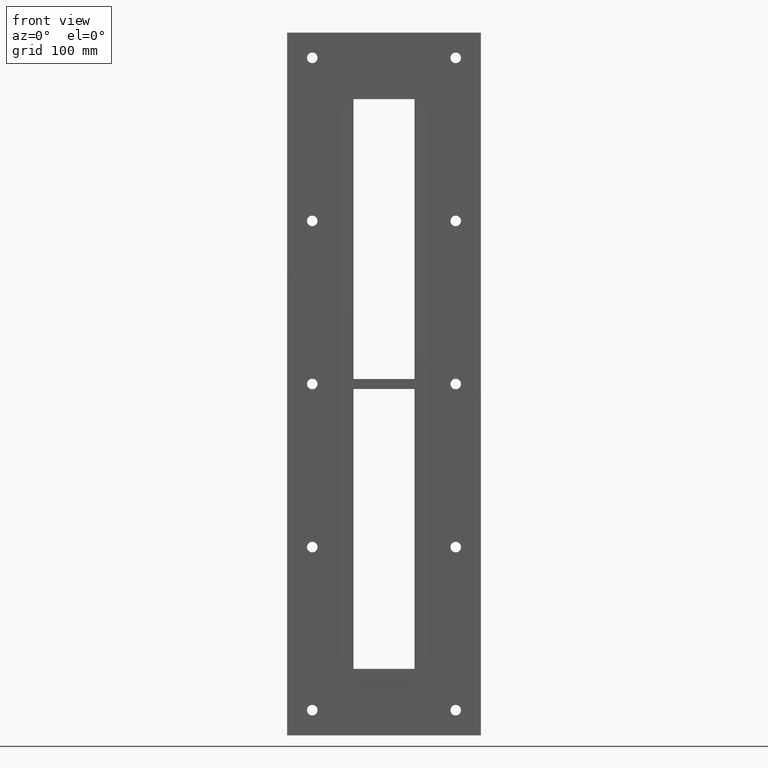
[diagram: clean part render]
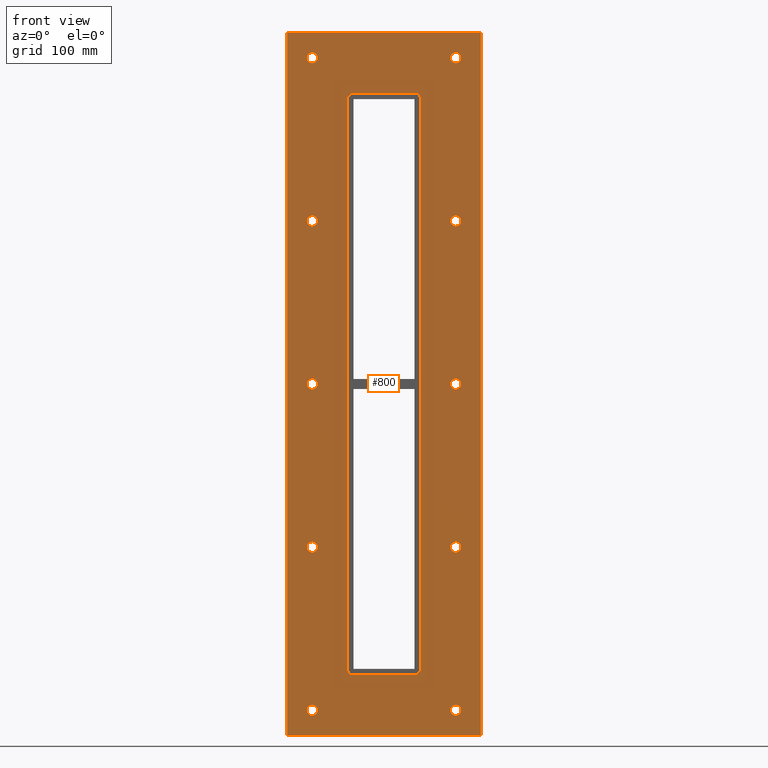
[diagram: same view with one face highlighted and labeled with its STEP entity id]
A machine part, front view. The second image highlights one B-rep face of the part: STEP entity #800.
In plain terms, the highlighted planar face has unit normal (0, 1, 0).
Its self-contained STEP definition (entity closure, byte-faithful):
#84=CARTESIAN_POINT('',(-66.000000000000099,0.0,-323.99999999999989));
#85=VERTEX_POINT('',#84);
#86=CARTESIAN_POINT('',(-71.250000000000114,0.0,-323.99999999999989));
#87=DIRECTION('',(0.0,1.0,0.0));
#88=DIRECTION('',(1.0,0.0,0.0));
#89=AXIS2_PLACEMENT_3D('',#86,#87,#88);
#90=CIRCLE('',#89,5.25);
#91=EDGE_CURVE('',#85,#85,#90,.T.);
#112=CARTESIAN_POINT('',(76.499999999999901,0.0,-161.99999999999986));
#113=VERTEX_POINT('',#112);
#114=CARTESIAN_POINT('',(71.249999999999886,0.0,-161.99999999999986));
#115=DIRECTION('',(0.0,1.0,0.0));
#116=DIRECTION('',(1.0,0.0,0.0));
#117=AXIS2_PLACEMENT_3D('',#114,#115,#116);
#118=CIRCLE('',#117,5.25);
#119=EDGE_CURVE('',#113,#113,#118,.T.);
#140=CARTESIAN_POINT('',(-66.000000000000099,0.0,-161.99999999999986));
#141=VERTEX_POINT('',#140);
#142=CARTESIAN_POINT('',(-71.250000000000114,0.0,-161.99999999999986));
#143=DIRECTION('',(0.0,1.0,0.0));
#144=DIRECTION('',(1.0,0.0,0.0));
#145=AXIS2_PLACEMENT_3D('',#142,#143,#144);
#146=CIRCLE('',#145,5.25);
#147=EDGE_CURVE('',#141,#141,#146,.T.);
#168=CARTESIAN_POINT('',(76.499999999999901,0.0,7.105427E-014));
#169=VERTEX_POINT('',#168);
#170=CARTESIAN_POINT('',(71.249999999999886,0.0,7.105427E-014));
#171=DIRECTION('',(0.0,1.0,0.0));
#172=DIRECTION('',(1.0,0.0,0.0));
#173=AXIS2_PLACEMENT_3D('',#170,#171,#172);
#174=CIRCLE('',#173,5.25);
#175=EDGE_CURVE('',#169,#169,#174,.T.);
#196=CARTESIAN_POINT('',(-66.000000000000099,0.0,7.105427E-014));
#197=VERTEX_POINT('',#196);
#198=CARTESIAN_POINT('',(-71.250000000000114,0.0,7.105427E-014));
#199=DIRECTION('',(0.0,1.0,0.0));
#200=DIRECTION('',(1.0,0.0,0.0));
#201=AXIS2_PLACEMENT_3D('',#198,#199,#200);
#202=CIRCLE('',#201,5.25);
#203=EDGE_CURVE('',#197,#197,#202,.T.);
#224=CARTESIAN_POINT('',(76.499999999999901,0.0,162.00000000000006));
#225=VERTEX_POINT('',#224);
#226=CARTESIAN_POINT('',(71.249999999999886,0.0,162.00000000000006));
#227=DIRECTION('',(0.0,1.0,0.0));
#228=DIRECTION('',(1.0,0.0,0.0));
#229=AXIS2_PLACEMENT_3D('',#226,#227,#228);
#230=CIRCLE('',#229,5.25);
#231=EDGE_CURVE('',#225,#225,#230,.T.);
#252=CARTESIAN_POINT('',(-66.000000000000099,0.0,162.00000000000006));
#253=VERTEX_POINT('',#252);
#254=CARTESIAN_POINT('',(-71.250000000000114,0.0,162.00000000000006));
#255=DIRECTION('',(0.0,1.0,0.0));
#256=DIRECTION('',(1.0,0.0,0.0));
#257=AXIS2_PLACEMENT_3D('',#254,#255,#256);
#258=CIRCLE('',#257,5.25);
#259=EDGE_CURVE('',#253,#253,#258,.T.);
#280=CARTESIAN_POINT('',(76.499999999999901,0.0,-323.99999999999989));
#281=VERTEX_POINT('',#280);
#282=CARTESIAN_POINT('',(71.249999999999886,0.0,-323.99999999999989));
#283=DIRECTION('',(0.0,1.0,0.0));
#284=DIRECTION('',(1.0,0.0,0.0));
#285=AXIS2_PLACEMENT_3D('',#282,#283,#284);
#286=CIRCLE('',#285,5.25);
#287=EDGE_CURVE('',#281,#281,#286,.T.);
#308=CARTESIAN_POINT('',(-66.000000000000099,0.0,324.00000000000006));
#309=VERTEX_POINT('',#308);
#310=CARTESIAN_POINT('',(-71.250000000000114,0.0,324.00000000000006));
#311=DIRECTION('',(0.0,1.0,0.0));
#312=DIRECTION('',(1.0,0.0,0.0));
#313=AXIS2_PLACEMENT_3D('',#310,#311,#312);
#314=CIRCLE('',#313,5.25);
#315=EDGE_CURVE('',#309,#309,#314,.T.);
#336=CARTESIAN_POINT('',(76.499999999999901,0.0,324.00000000000006));
#337=VERTEX_POINT('',#336);
#338=CARTESIAN_POINT('',(71.249999999999886,0.0,324.00000000000006));
#339=DIRECTION('',(0.0,1.0,0.0));
#340=DIRECTION('',(1.0,0.0,0.0));
#341=AXIS2_PLACEMENT_3D('',#338,#339,#340);
#342=CIRCLE('',#341,5.25);
#343=EDGE_CURVE('',#337,#337,#342,.T.);
#661=CARTESIAN_POINT('',(-4.787486E-015,0.0,3.351240E-014));
#662=DIRECTION('',(0.0,1.0,0.0));
#663=DIRECTION('',(0.0,0.0,1.0));
#664=AXIS2_PLACEMENT_3D('',#661,#662,#663);
#665=PLANE('',#664);
#666=CARTESIAN_POINT('',(-96.25,0.0,349.0));
#667=VERTEX_POINT('',#666);
#668=CARTESIAN_POINT('',(96.249999999999986,0.0,349.0));
#669=VERTEX_POINT('',#668);
#670=CARTESIAN_POINT('',(-96.25,0.0,349.0));
#671=DIRECTION('',(1.0,0.0,0.0));
#672=VECTOR('',#671,192.5);
#673=LINE('',#670,#672);
#674=EDGE_CURVE('',#667,#669,#673,.T.);
#675=ORIENTED_EDGE('',*,*,#674,.F.);
#676=CARTESIAN_POINT('',(-96.25,0.0,-348.99999999999989));
#677=VERTEX_POINT('',#676);
#678=CARTESIAN_POINT('',(-96.25,0.0,-348.99999999999989));
#679=DIRECTION('',(0.0,0.0,1.0));
#680=VECTOR('',#679,697.99999999999977);
#681=LINE('',#678,#680);
#682=EDGE_CURVE('',#677,#667,#681,.T.);
#683=ORIENTED_EDGE('',*,*,#682,.F.);
#684=CARTESIAN_POINT('',(96.249999999999986,0.0,-348.99999999999989));
#685=VERTEX_POINT('',#684);
#686=CARTESIAN_POINT('',(96.249999999999986,0.0,-348.99999999999989));
#687=DIRECTION('',(-1.0,0.0,0.0));
#688=VECTOR('',#687,192.5);
#689=LINE('',#686,#688);
#690=EDGE_CURVE('',#685,#677,#689,.T.);
#691=ORIENTED_EDGE('',*,*,#690,.F.);
#692=CARTESIAN_POINT('',(96.249999999999986,0.0,349.0));
#693=DIRECTION('',(0.0,0.0,-1.0));
#694=VECTOR('',#693,697.99999999999977);
#695=LINE('',#692,#694);
#696=EDGE_CURVE('',#669,#685,#695,.T.);
#697=ORIENTED_EDGE('',*,*,#696,.F.);
#698=EDGE_LOOP('',(#675,#683,#691,#697));
#699=FACE_OUTER_BOUND('',#698,.T.);
#700=ORIENTED_EDGE('',*,*,#91,.T.);
#701=EDGE_LOOP('',(#700));
#702=FACE_BOUND('',#701,.T.);
#703=ORIENTED_EDGE('',*,*,#119,.T.);
#704=EDGE_LOOP('',(#703));
#705=FACE_BOUND('',#704,.T.);
#706=ORIENTED_EDGE('',*,*,#147,.T.);
#707=EDGE_LOOP('',(#706));
#708=FACE_BOUND('',#707,.T.);
#709=ORIENTED_EDGE('',*,*,#175,.T.);
#710=EDGE_LOOP('',(#709));
#711=FACE_BOUND('',#710,.T.);
#712=ORIENTED_EDGE('',*,*,#203,.T.);
#713=EDGE_LOOP('',(#712));
#714=FACE_BOUND('',#713,.T.);
#715=ORIENTED_EDGE('',*,*,#231,.T.);
#716=EDGE_LOOP('',(#715));
#717=FACE_BOUND('',#716,.T.);
#718=ORIENTED_EDGE('',*,*,#259,.T.);
#719=EDGE_LOOP('',(#718));
#720=FACE_BOUND('',#719,.T.);
#721=ORIENTED_EDGE('',*,*,#287,.T.);
#722=EDGE_LOOP('',(#721));
#723=FACE_BOUND('',#722,.T.);
#724=ORIENTED_EDGE('',*,*,#315,.T.);
#725=EDGE_LOOP('',(#724));
#726=FACE_BOUND('',#725,.T.);
#727=ORIENTED_EDGE('',*,*,#343,.T.);
#728=EDGE_LOOP('',(#727));
#729=FACE_BOUND('',#728,.T.);
#730=CARTESIAN_POINT('',(-30.250000000000004,0.0,289.0));
#731=VERTEX_POINT('',#730);
#732=CARTESIAN_POINT('',(-36.25,0.0,283.0));
#733=VERTEX_POINT('',#732);
#734=CARTESIAN_POINT('',(-30.250000000000004,0.0,283.0));
#735=DIRECTION('',(0.0,-1.0,0.0));
#736=DIRECTION('',(-0.707106781186546,0.0,0.707106781186549));
#737=AXIS2_PLACEMENT_3D('',#734,#735,#736);
#738=CIRCLE('',#737,6.000000000000001);
#739=EDGE_CURVE('',#731,#733,#738,.T.);
#740=ORIENTED_EDGE('',*,*,#739,.F.);
#741=CARTESIAN_POINT('',(30.250000000000004,0.0,289.0));
#742=VERTEX_POINT('',#741);
#743=CARTESIAN_POINT('',(30.249999999999996,0.0,289.0));
#744=DIRECTION('',(-1.0,0.0,0.0));
#745=VECTOR('',#744,60.5);
#746=LINE('',#743,#745);
#747=EDGE_CURVE('',#742,#731,#746,.T.);
#748=ORIENTED_EDGE('',*,*,#747,.F.);
#749=CARTESIAN_POINT('',(36.25,0.0,283.0));
#750=VERTEX_POINT('',#749);
#751=CARTESIAN_POINT('',(30.250000000000004,0.0,283.0));
#752=DIRECTION('',(0.0,-1.0,0.0));
#753=DIRECTION('',(0.707106781186546,0.0,0.707106781186549));
#754=AXIS2_PLACEMENT_3D('',#751,#752,#753);
#755=CIRCLE('',#754,6.000000000000001);
#756=EDGE_CURVE('',#750,#742,#755,.T.);
#757=ORIENTED_EDGE('',*,*,#756,.F.);
#758=CARTESIAN_POINT('',(36.25,0.0,-283.0));
#759=VERTEX_POINT('',#758);
#760=CARTESIAN_POINT('',(36.25,0.0,-283.0));
#761=DIRECTION('',(0.0,0.0,1.0));
#762=VECTOR('',#761,566.0);
#763=LINE('',#760,#762);
#764=EDGE_CURVE('',#759,#750,#763,.T.);
#765=ORIENTED_EDGE('',*,*,#764,.F.);
#766=CARTESIAN_POINT('',(30.250000000000004,0.0,-289.0));
#767=VERTEX_POINT('',#766);
#768=CARTESIAN_POINT('',(30.250000000000004,0.0,-283.0));
#769=DIRECTION('',(0.0,-1.0,0.0));
#770=DIRECTION('',(0.707106781186546,0.0,-0.707106781186549));
#771=AXIS2_PLACEMENT_3D('',#768,#769,#770);
#772=CIRCLE('',#771,6.000000000000001);
#773=EDGE_CURVE('',#767,#759,#772,.T.);
#774=ORIENTED_EDGE('',*,*,#773,.F.);
#775=CARTESIAN_POINT('',(-30.250000000000004,0.0,-289.0));
#776=VERTEX_POINT('',#775);
#777=CARTESIAN_POINT('',(-30.250000000000004,0.0,-289.0));
#778=DIRECTION('',(1.0,0.0,0.0));
#779=VECTOR('',#778,60.5);
#780=LINE('',#777,#779);
#781=EDGE_CURVE('',#776,#767,#780,.T.);
#782=ORIENTED_EDGE('',*,*,#781,.F.);
#783=CARTESIAN_POINT('',(-36.25,0.0,-283.00000000000006));
#784=VERTEX_POINT('',#783);
#785=CARTESIAN_POINT('',(-30.250000000000004,0.0,-283.00000000000006));
#786=DIRECTION('',(0.0,-1.0,0.0));
#787=DIRECTION('',(-0.707106781186551,0.0,-0.707106781186544));
#788=AXIS2_PLACEMENT_3D('',#785,#786,#787);
#789=CIRCLE('',#788,6.0);
#790=EDGE_CURVE('',#784,#776,#789,.T.);
#791=ORIENTED_EDGE('',*,*,#790,.F.);
#792=CARTESIAN_POINT('',(-36.25,0.0,283.0));
#793=DIRECTION('',(0.0,0.0,-1.0));
#794=VECTOR('',#793,566.0);
#795=LINE('',#792,#794);
#796=EDGE_CURVE('',#733,#784,#795,.T.);
#797=ORIENTED_EDGE('',*,*,#796,.F.);
#798=EDGE_LOOP('',(#740,#748,#757,#765,#774,#782,#791,#797));
#799=FACE_BOUND('',#798,.T.);
#800=ADVANCED_FACE('',(#699,#702,#705,#708,#711,#714,#717,#720,#723,#726,#729,#799),#665,.F.);